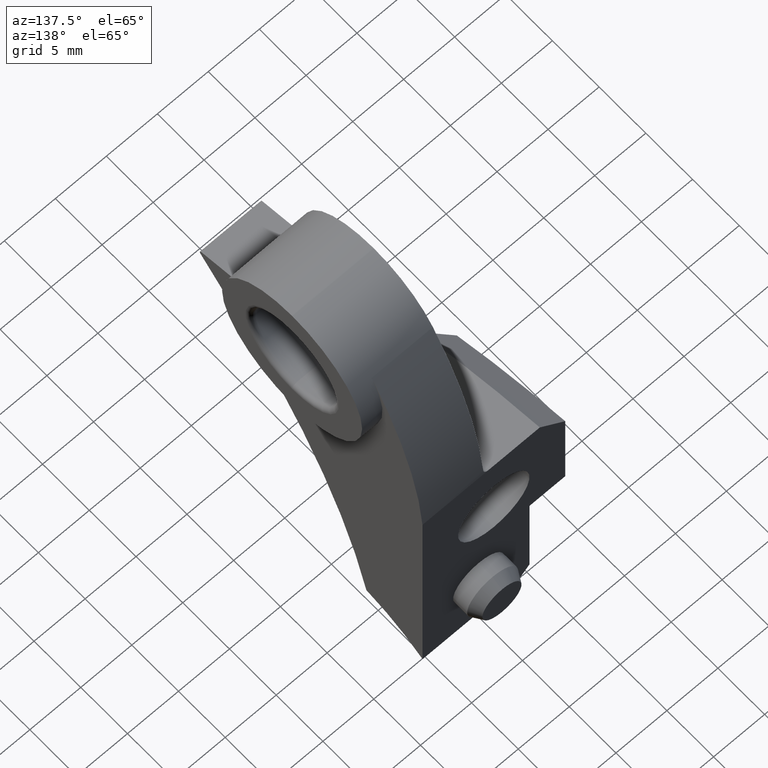
[diagram: clean part render]
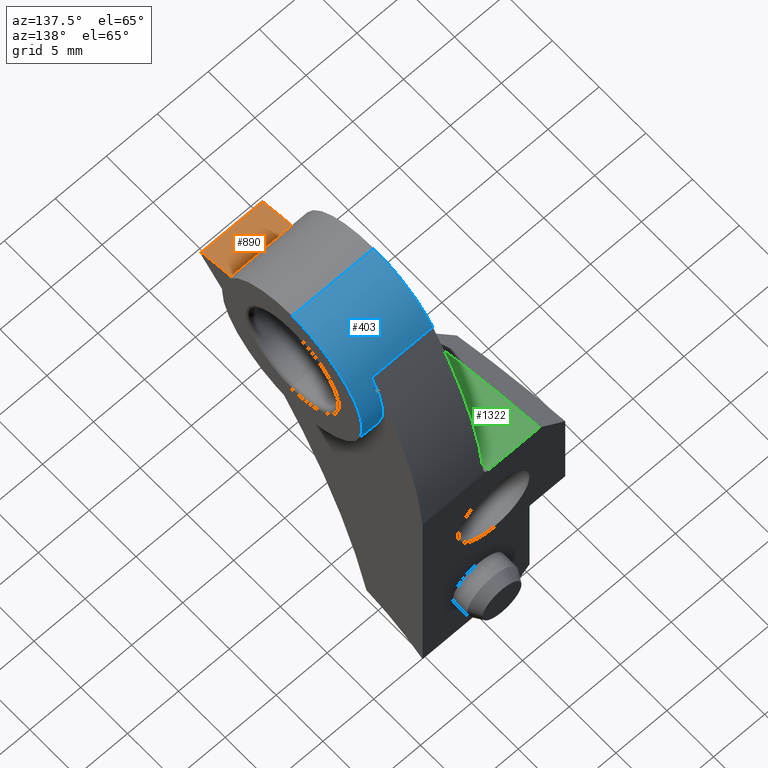
[diagram: same view with three faces highlighted in distinct colors, each labeled with its STEP entity id]
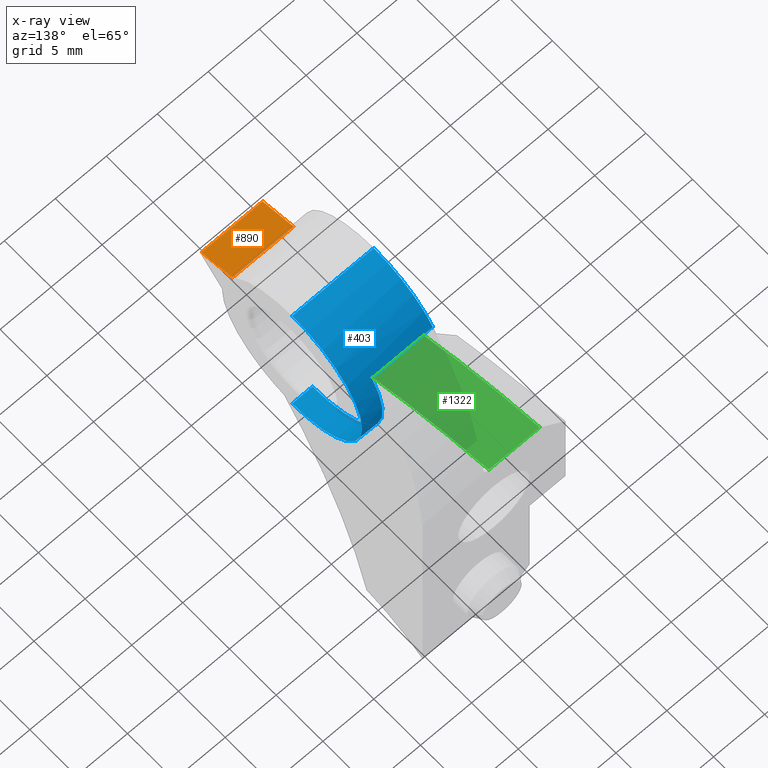
[diagram: x-ray of the same camera — body ghosted, the three highlighted faces saturated]
A machine part, auxiliary view with three faces highlighted in distinct colors.
The next image is the same camera in x-ray (body ghosted, the three faces saturated) — at least one of them is partly hidden behind the body in this view.
Their STEP definitions:

[orange] entity #890 — the highlighted planar face has unit normal (0, 0.2672, -0.9636).
#81 = CARTESIAN_POINT ( 'NONE',  ( -0.5000000000000004400, -38.75838152966954200, 32.08338946572203600 ) ) ;
#142 = CARTESIAN_POINT ( 'NONE',  ( 10.25000000000000200, -38.75838152966954200, 32.08338946572203600 ) ) ;
#173 = EDGE_CURVE ( 'NONE', #769, #1067, #178, .T. ) ;
#177 = VECTOR ( 'NONE', #470, 1000.000000000000100 ) ;
#178 = LINE ( 'NONE', #468, #984 ) ;
#248 = PLANE ( 'NONE',  #906 ) ;
#273 = LINE ( 'NONE', #466, #606 ) ;
#332 = CARTESIAN_POINT ( 'NONE',  ( 5.500000000000001800, -35.02346521516957300, 33.11917342974239600 ) ) ;
#377 = VECTOR ( 'NONE', #508, 1000.000000000000200 ) ;
#382 = ORIENTED_EDGE ( 'NONE', *, *, #173, .T. ) ;
#402 = LINE ( 'NONE', #81, #377 ) ;
#410 = EDGE_CURVE ( 'NONE', #1067, #1238, #402, .T. ) ;
#427 = ORIENTED_EDGE ( 'NONE', *, *, #936, .T. ) ;
#466 = CARTESIAN_POINT ( 'NONE',  ( 10.25000000000000200, -38.35345223747060600, 32.19568629705757700 ) ) ;
#468 = CARTESIAN_POINT ( 'NONE',  ( 10.25000000000000200, -35.02346521516957300, 33.11917342974239600 ) ) ;
#470 = DIRECTION ( 'NONE',  ( 1.617506508486825400E-017, 0.9636304532086229500, 0.2672383760782567900 ) ) ;
#508 = DIRECTION ( 'NONE',  ( 0.0000000000000000000, -0.9636304532086229500, -0.2672383760782567900 ) ) ;
#509 = EDGE_LOOP ( 'NONE', ( #1147, #905, #427, #382 ) ) ;
#535 = DIRECTION ( 'NONE',  ( 1.000000000000000000, -0.0000000000000000000, -0.0000000000000000000 ) ) ;
#569 = DIRECTION ( 'NONE',  ( 0.0000000000000000000, 0.9636304532086230600, 0.2672383760782568500 ) ) ;
#606 = VECTOR ( 'NONE', #535, 1000.000000000000000 ) ;
#769 = VERTEX_POINT ( 'NONE', #332 ) ;
#849 = CARTESIAN_POINT ( 'NONE',  ( -0.5000000000000004400, -38.35345223747060600, 32.19568629705757700 ) ) ;
#890 = ADVANCED_FACE ( 'NONE', ( #1258 ), #248, .F. ) ;
#905 = ORIENTED_EDGE ( 'NONE', *, *, #1079, .T. ) ;
#906 = AXIS2_PLACEMENT_3D ( 'NONE', #142, #1210, #569 ) ;
#925 = CARTESIAN_POINT ( 'NONE',  ( -0.5000000000000004400, -35.02346521516957300, 33.11917342974239600 ) ) ;
#936 = EDGE_CURVE ( 'NONE', #977, #769, #1080, .T. ) ;
#976 = CARTESIAN_POINT ( 'NONE',  ( 5.500000000000001800, -38.35345223747060600, 32.19568629705757700 ) ) ;
#977 = VERTEX_POINT ( 'NONE', #976 ) ;
#984 = VECTOR ( 'NONE', #1255, 1000.000000000000000 ) ;
#1067 = VERTEX_POINT ( 'NONE', #925 ) ;
#1079 = EDGE_CURVE ( 'NONE', #1238, #977, #273, .T. ) ;
#1080 = LINE ( 'NONE', #1224, #177 ) ;
#1147 = ORIENTED_EDGE ( 'NONE', *, *, #410, .T. ) ;
#1210 = DIRECTION ( 'NONE',  ( 0.0000000000000000000, 0.2672383760782568500, -0.9636304532086230600 ) ) ;
#1224 = CARTESIAN_POINT ( 'NONE',  ( 5.500000000000001800, -38.75838152966954200, 32.08338946572203600 ) ) ;
#1238 = VERTEX_POINT ( 'NONE', #849 ) ;
#1255 = DIRECTION ( 'NONE',  ( -1.000000000000000000, -0.0000000000000000000, -0.0000000000000000000 ) ) ;
#1258 = FACE_OUTER_BOUND ( 'NONE', #509, .T. ) ;

[blue] entity #403 — the highlighted cylindrical surface (partial cylindrical patch) has radius 7.5 mm, axis along (-1, -0, -0).
#7 = AXIS2_PLACEMENT_3D ( 'NONE', #484, #1261, #731 ) ;
#23 = DIRECTION ( 'NONE',  ( 1.000000000000000000, 0.0000000000000000000, -6.052673018837545200E-017 ) ) ;
#29 = DIRECTION ( 'NONE',  ( -1.156482317317871500E-016, 0.0000000000000000000, -1.000000000000000000 ) ) ;
#104 = DIRECTION ( 'NONE',  ( -1.000000000000000000, -0.0000000000000000000, -0.0000000000000000000 ) ) ;
#112 = ORIENTED_EDGE ( 'NONE', *, *, #677, .T. ) ;
#146 = CIRCLE ( 'NONE', #306, 7.500000000000000000 ) ;
#164 = VERTEX_POINT ( 'NONE', #575 ) ;
#165 = EDGE_CURVE ( 'NONE', #833, #1291, #1086, .T. ) ;
#185 = EDGE_CURVE ( 'NONE', #266, #1050, #1024, .T. ) ;
#266 = VERTEX_POINT ( 'NONE', #1038 ) ;
#269 = CARTESIAN_POINT ( 'NONE',  ( 10.25000000000000200, -26.47209325125959000, 42.99067876071980300 ) ) ;
#270 = EDGE_CURVE ( 'NONE', #164, #1385, #1257, .T. ) ;
#306 = AXIS2_PLACEMENT_3D ( 'NONE', #675, #23, #781 ) ;
#324 = ORIENTED_EDGE ( 'NONE', *, *, #824, .F. ) ;
#403 = ADVANCED_FACE ( 'NONE', ( #896 ), #1192, .T. ) ;
#422 = ORIENTED_EDGE ( 'NONE', *, *, #876, .T. ) ;
#484 = CARTESIAN_POINT ( 'NONE',  ( 10.25000000000000200, -26.47209325125959000, 35.49067876071980300 ) ) ;
#489 = DIRECTION ( 'NONE',  ( 1.000000000000000000, -0.0000000000000000000, -0.0000000000000000000 ) ) ;
#510 = AXIS2_PLACEMENT_3D ( 'NONE', #1311, #679, #29 ) ;
#531 = CARTESIAN_POINT ( 'NONE',  ( 10.25000000000000200, -26.47209325125959000, 27.99067876071980600 ) ) ;
#575 = CARTESIAN_POINT ( 'NONE',  ( -0.5000000000000004400, -20.13872495492624600, 39.50794723855391800 ) ) ;
#588 = VECTOR ( 'NONE', #489, 1000.000000000000000 ) ;
#633 = CARTESIAN_POINT ( 'NONE',  ( -0.5000000000000004400, -26.47209325125959000, 42.99067876071980300 ) ) ;
#637 = CARTESIAN_POINT ( 'NONE',  ( -0.5000000000000004400, -26.47209325125959000, 35.49067876071980300 ) ) ;
#667 = CARTESIAN_POINT ( 'NONE',  ( 7.500000000000002700, -26.47209325125959000, 27.99067876071980600 ) ) ;
#675 = CARTESIAN_POINT ( 'NONE',  ( 7.500000000000003600, -26.47209325125959000, 35.49067876071980300 ) ) ;
#677 = EDGE_CURVE ( 'NONE', #164, #1050, #1361, .T. ) ;
#679 = DIRECTION ( 'NONE',  ( 1.000000000000000000, 0.0000000000000000000, -6.052673018837545200E-017 ) ) ;
#731 = DIRECTION ( 'NONE',  ( 0.0000000000000000000, 0.0000000000000000000, 1.000000000000000000 ) ) ;
#751 = DIRECTION ( 'NONE',  ( 0.0000000000000000000, 0.0000000000000000000, -1.000000000000000000 ) ) ;
#753 = EDGE_LOOP ( 'NONE', ( #324, #1349, #422, #1130, #112, #1363 ) ) ;
#781 = DIRECTION ( 'NONE',  ( -1.156482317317871500E-016, 0.0000000000000000000, -1.000000000000000000 ) ) ;
#798 = CIRCLE ( 'NONE', #510, 7.500000000000000000 ) ;
#824 = EDGE_CURVE ( 'NONE', #833, #266, #146, .T. ) ;
#833 = VERTEX_POINT ( 'NONE', #667 ) ;
#876 = EDGE_CURVE ( 'NONE', #1291, #1385, #798, .T. ) ;
#896 = FACE_OUTER_BOUND ( 'NONE', #753, .T. ) ;
#917 = VECTOR ( 'NONE', #1329, 1000.000000000000000 ) ;
#974 = CARTESIAN_POINT ( 'NONE',  ( 5.500000000000001800, -20.13872495492623900, 39.50794723855391800 ) ) ;
#1024 = LINE ( 'NONE', #269, #917 ) ;
#1038 = CARTESIAN_POINT ( 'NONE',  ( 7.500000000000004400, -26.47209325125959000, 42.99067876071980300 ) ) ;
#1050 = VERTEX_POINT ( 'NONE', #633 ) ;
#1051 = VECTOR ( 'NONE', #104, 1000.000000000000000 ) ;
#1059 = CARTESIAN_POINT ( 'NONE',  ( 5.500000000000000900, -26.47209325125959000, 27.99067876071980600 ) ) ;
#1086 = LINE ( 'NONE', #531, #1051 ) ;
#1130 = ORIENTED_EDGE ( 'NONE', *, *, #270, .F. ) ;
#1192 = CYLINDRICAL_SURFACE ( 'NONE', #7, 7.500000000000000000 ) ;
#1243 = AXIS2_PLACEMENT_3D ( 'NONE', #637, #1386, #751 ) ;
#1249 = CARTESIAN_POINT ( 'NONE',  ( -10.25000000000000000, -20.13872495492624600, 39.50794723855391800 ) ) ;
#1257 = LINE ( 'NONE', #1249, #588 ) ;
#1261 = DIRECTION ( 'NONE',  ( -1.000000000000000000, -0.0000000000000000000, -0.0000000000000000000 ) ) ;
#1291 = VERTEX_POINT ( 'NONE', #1059 ) ;
#1311 = CARTESIAN_POINT ( 'NONE',  ( 5.500000000000001800, -26.47209325125959000, 35.49067876071980300 ) ) ;
#1329 = DIRECTION ( 'NONE',  ( -1.000000000000000000, -0.0000000000000000000, -0.0000000000000000000 ) ) ;
#1349 = ORIENTED_EDGE ( 'NONE', *, *, #165, .T. ) ;
#1361 = CIRCLE ( 'NONE', #1243, 7.500000000000000000 ) ;
#1363 = ORIENTED_EDGE ( 'NONE', *, *, #185, .F. ) ;
#1385 = VERTEX_POINT ( 'NONE', #974 ) ;
#1386 = DIRECTION ( 'NONE',  ( 1.000000000000000000, 0.0000000000000000000, 0.0000000000000000000 ) ) ;

[green] entity #1322 — the highlighted cylindrical surface (partial cylindrical patch) has radius 63.9097 mm, axis along (-1, -0, -0).
#2 = LINE ( 'NONE', #704, #1232 ) ;
#20 = VECTOR ( 'NONE', #327, 1000.000000000000000 ) ;
#44 = EDGE_LOOP ( 'NONE', ( #1218, #548, #935, #1266 ) ) ;
#73 = EDGE_CURVE ( 'NONE', #904, #467, #579, .T. ) ;
#111 = CARTESIAN_POINT ( 'NONE',  ( -10.25000000000000000, -14.69999999999999800, 22.95000000000000300 ) ) ;
#228 = VERTEX_POINT ( 'NONE', #915 ) ;
#257 = FACE_OUTER_BOUND ( 'NONE', #44, .T. ) ;
#327 = DIRECTION ( 'NONE',  ( 1.000000000000000000, -0.0000000000000000000, -0.0000000000000000000 ) ) ;
#366 = DIRECTION ( 'NONE',  ( -1.000000000000000000, -0.0000000000000000000, -0.0000000000000000000 ) ) ;
#375 = EDGE_CURVE ( 'NONE', #904, #228, #2, .T. ) ;
#417 = CYLINDRICAL_SURFACE ( 'NONE', #1367, 63.90967859880546300 ) ;
#430 = EDGE_CURVE ( 'NONE', #1004, #467, #1143, .T. ) ;
#467 = VERTEX_POINT ( 'NONE', #608 ) ;
#518 = CARTESIAN_POINT ( 'NONE',  ( 45.73089835859470000, -2.022552163745035400, -39.68967859880545700 ) ) ;
#519 = CARTESIAN_POINT ( 'NONE',  ( -1.000000000000000900, -2.022552163745035400, -39.68967859880545700 ) ) ;
#548 = ORIENTED_EDGE ( 'NONE', *, *, #73, .T. ) ;
#549 = EDGE_CURVE ( 'NONE', #1004, #228, #662, .T. ) ;
#554 = DIRECTION ( 'NONE',  ( 0.0000000000000000000, 0.0000000000000000000, 1.000000000000000000 ) ) ;
#568 = AXIS2_PLACEMENT_3D ( 'NONE', #690, #788, #1228 ) ;
#579 = CIRCLE ( 'NONE', #807, 63.90967859880546300 ) ;
#608 = CARTESIAN_POINT ( 'NONE',  ( -1.000000000000000900, -14.69999999999999800, 22.95000000000000300 ) ) ;
#662 = CIRCLE ( 'NONE', #568, 63.90967859880546300 ) ;
#690 = CARTESIAN_POINT ( 'NONE',  ( -6.006708091253948100, -2.022552163745031900, -39.68967859880545700 ) ) ;
#704 = CARTESIAN_POINT ( 'NONE',  ( 45.73089835859470000, -27.58751398423492400, 18.88403347170880800 ) ) ;
#756 = CARTESIAN_POINT ( 'NONE',  ( -6.006708091253941000, -14.69999999999999800, 22.95000000000001700 ) ) ;
#784 = CARTESIAN_POINT ( 'NONE',  ( -1.000000000000000900, -27.58751398423492400, 18.88403347170880800 ) ) ;
#788 = DIRECTION ( 'NONE',  ( 1.000000000000000000, -0.0000000000000000000, -0.0000000000000000000 ) ) ;
#807 = AXIS2_PLACEMENT_3D ( 'NONE', #519, #366, #1116 ) ;
#904 = VERTEX_POINT ( 'NONE', #784 ) ;
#915 = CARTESIAN_POINT ( 'NONE',  ( -6.006708091253941000, -27.58751398423492400, 18.88403347170880800 ) ) ;
#935 = ORIENTED_EDGE ( 'NONE', *, *, #430, .F. ) ;
#1004 = VERTEX_POINT ( 'NONE', #756 ) ;
#1083 = DIRECTION ( 'NONE',  ( -1.000000000000000000, -0.0000000000000000000, -0.0000000000000000000 ) ) ;
#1116 = DIRECTION ( 'NONE',  ( 0.0000000000000000000, 0.0000000000000000000, -1.000000000000000000 ) ) ;
#1143 = LINE ( 'NONE', #111, #20 ) ;
#1218 = ORIENTED_EDGE ( 'NONE', *, *, #375, .F. ) ;
#1228 = DIRECTION ( 'NONE',  ( 0.0000000000000000000, 0.0000000000000000000, 1.000000000000000000 ) ) ;
#1232 = VECTOR ( 'NONE', #1242, 1000.000000000000000 ) ;
#1242 = DIRECTION ( 'NONE',  ( -1.000000000000000000, -0.0000000000000000000, -0.0000000000000000000 ) ) ;
#1266 = ORIENTED_EDGE ( 'NONE', *, *, #549, .T. ) ;
#1322 = ADVANCED_FACE ( 'NONE', ( #257 ), #417, .T. ) ;
#1367 = AXIS2_PLACEMENT_3D ( 'NONE', #518, #1083, #554 ) ;